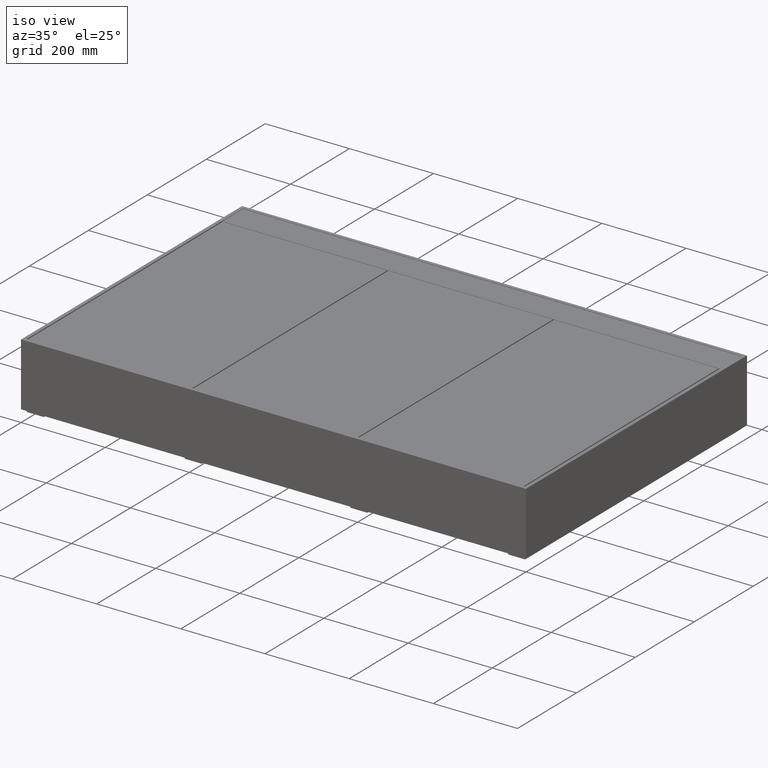
[diagram: clean part render]
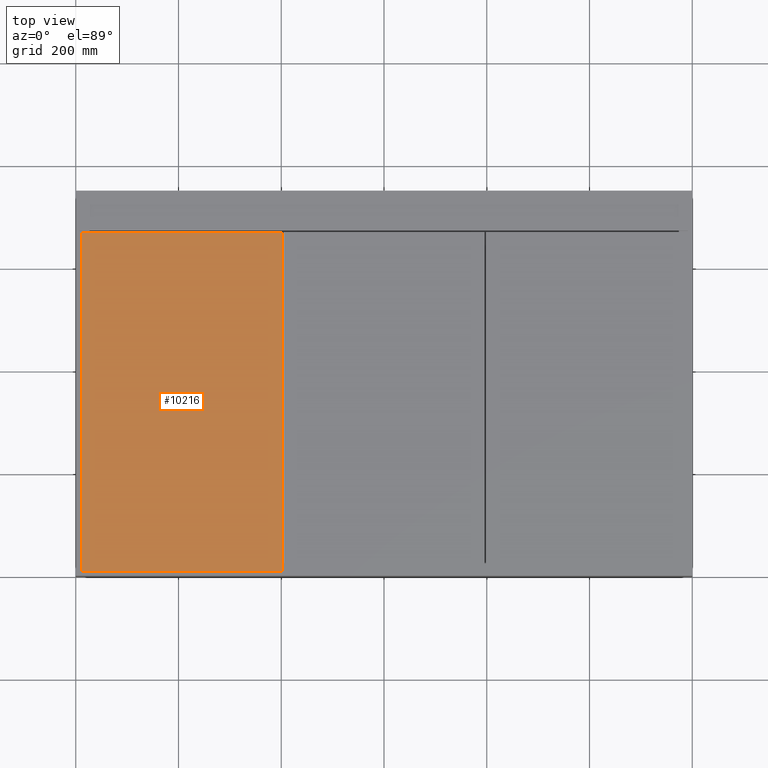
[diagram: tour spotlight — one face highlighted and labeled with its STEP entity id]
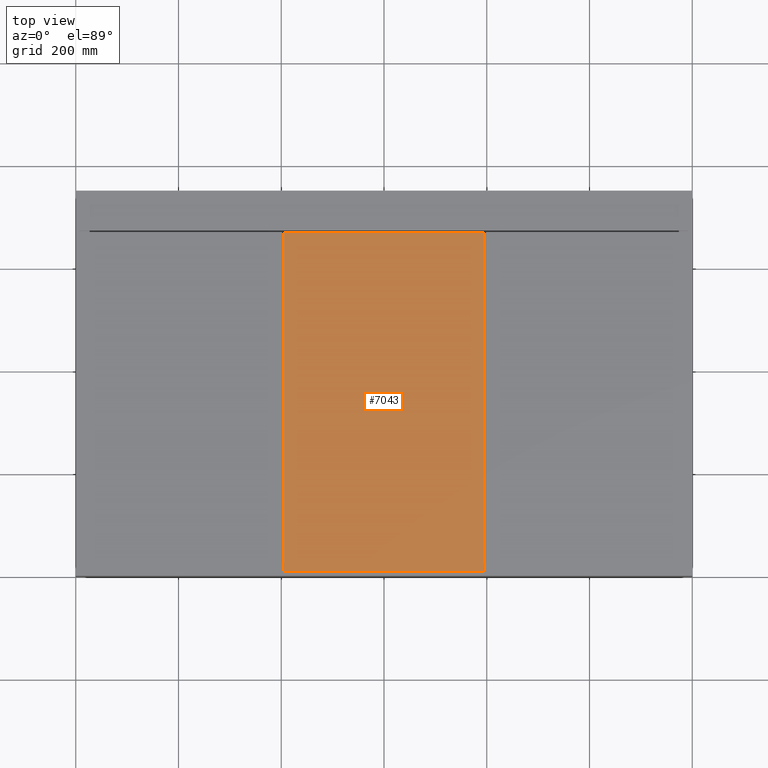
[diagram: tour spotlight — one face highlighted and labeled with its STEP entity id]
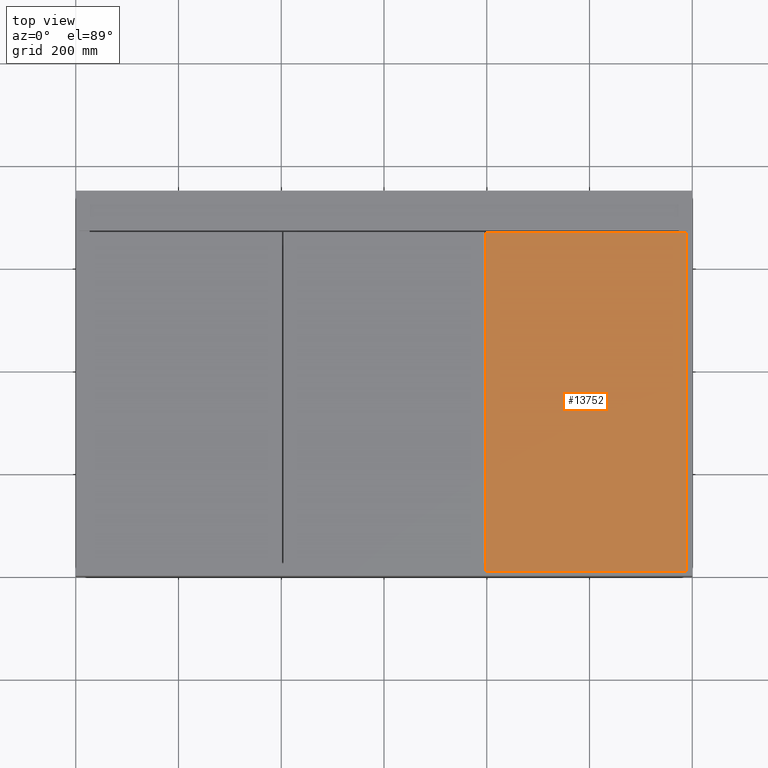
[diagram: tour spotlight — one face highlighted and labeled with its STEP entity id]
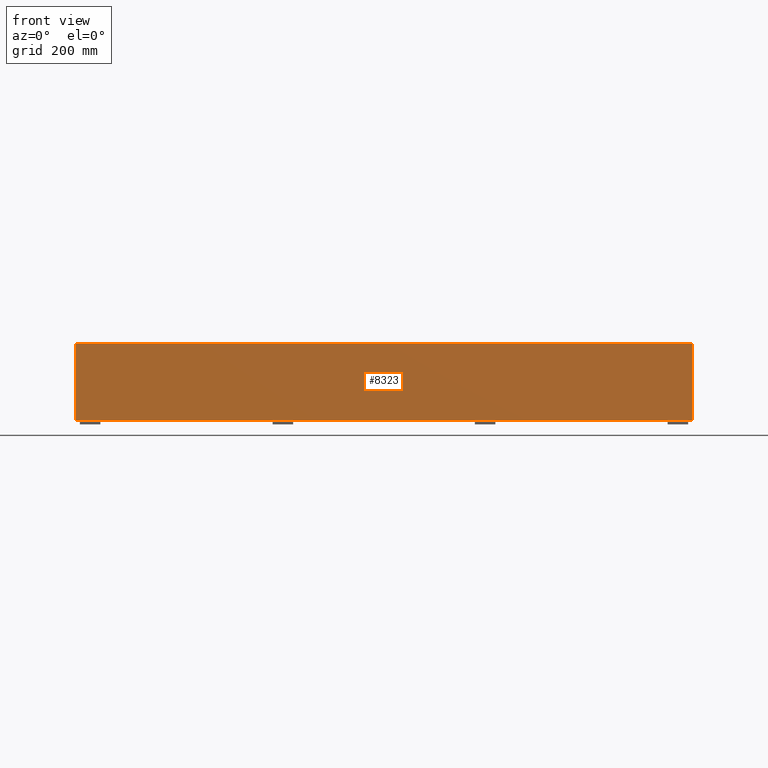
[diagram: tour spotlight — one face highlighted and labeled with its STEP entity id]
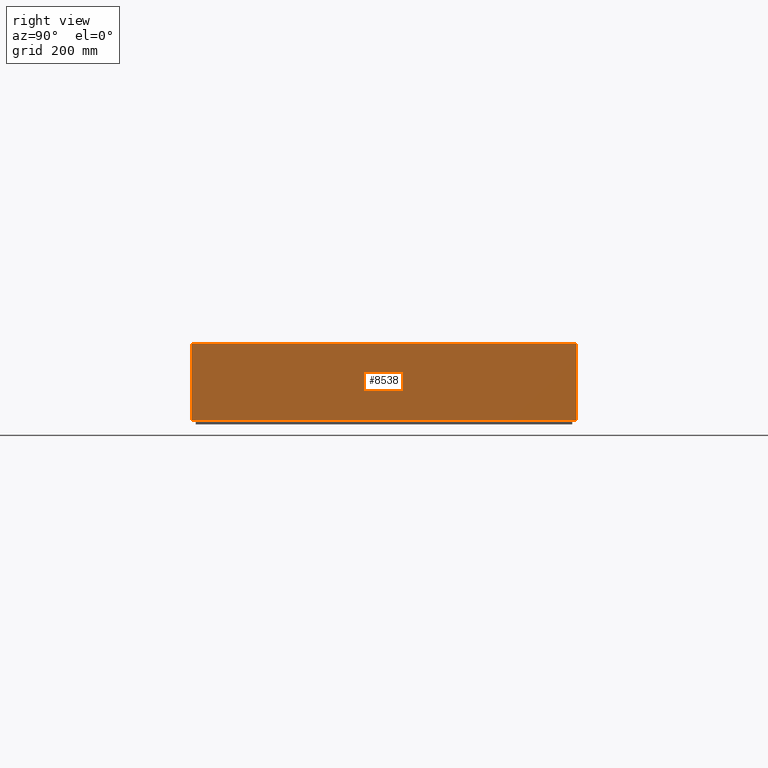
[diagram: tour spotlight — one face highlighted and labeled with its STEP entity id]
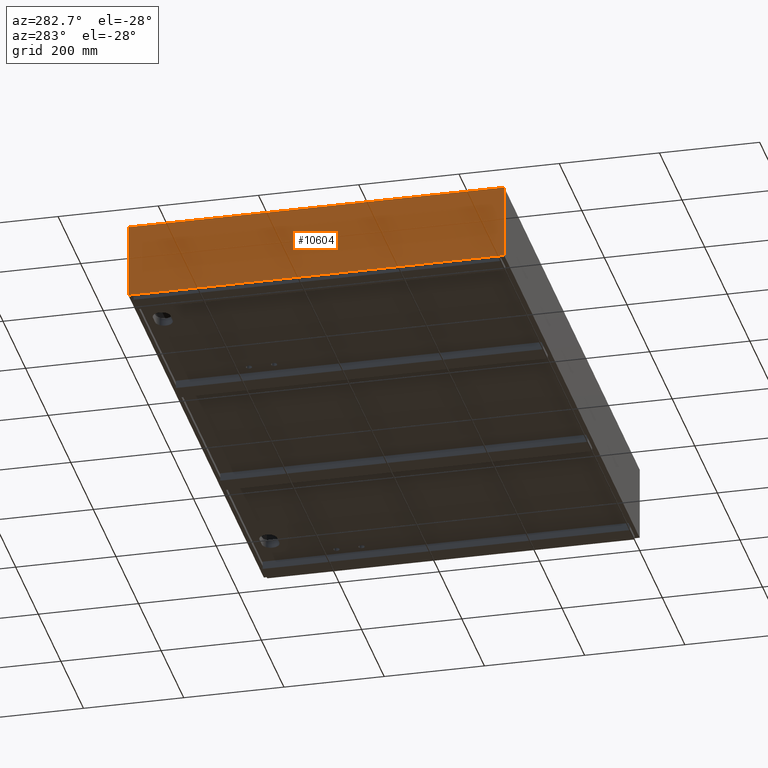
[diagram: tour spotlight — one face highlighted and labeled with its STEP entity id]
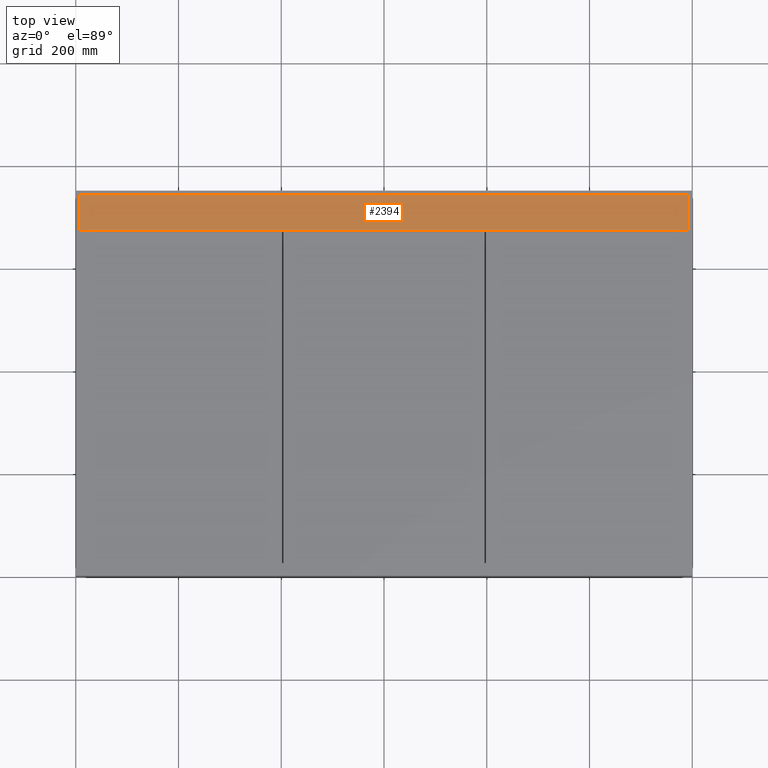
[diagram: tour spotlight — one face highlighted and labeled with its STEP entity id]
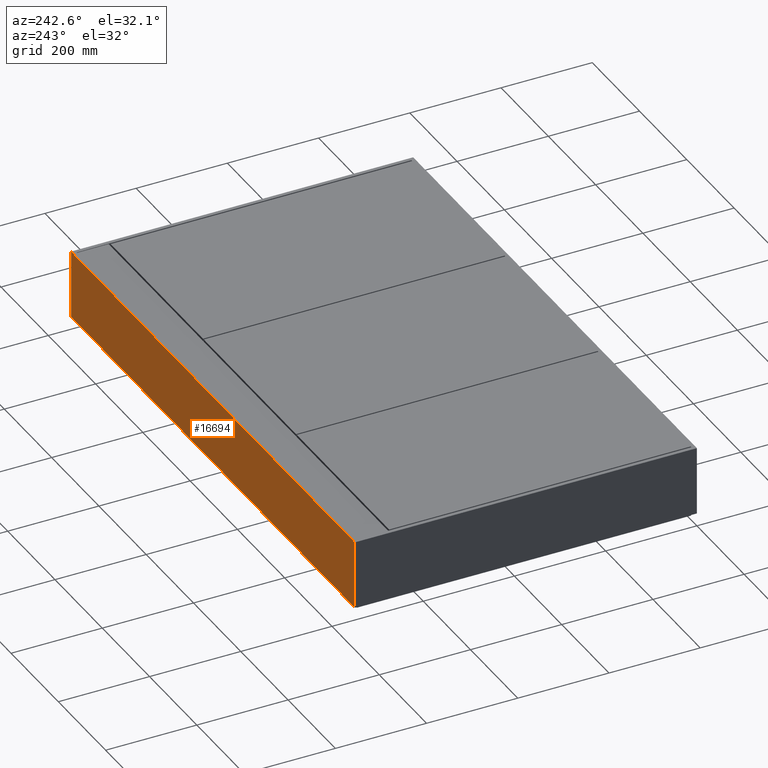
[diagram: tour spotlight — one face highlighted and labeled with its STEP entity id]
A machine part: a face-by-face anatomy tour. The part has 597 B-rep faces; the first image is the clean iso view, then the 8 largest visible faces are spotlighted one at a time (largest first), each with its STEP entity span.

Face 1 — top view, entity #10216. In plain terms, the highlighted planar face has unit normal (0, -0, 1).
Definition (entity closure, byte-faithful):
#1034 = VECTOR ( 'NONE', #10595, 1000.000000000000000 ) ;
#1240 = VECTOR ( 'NONE', #17620, 1000.000000000000000 ) ;
#1643 = LINE ( 'NONE', #7388, #12572 ) ;
#2298 = CARTESIAN_POINT ( 'NONE',  ( 0.0000000000000000000, 0.0000000000000000000, 6.071532165918824830E-14 ) ) ;
#2360 = EDGE_CURVE ( 'NONE', #11376, #8809, #6164, .T. ) ;
#3574 = AXIS2_PLACEMENT_3D ( 'NONE', #2298, #8047, #13774 ) ;
#4338 = EDGE_CURVE ( 'NONE', #16214, #10564, #6463, .T. ) ;
#4856 = CARTESIAN_POINT ( 'NONE',  ( 401.6600000000000250, 668.9999000000001388, 6.071532165918824830E-14 ) ) ;
#4929 = VECTOR ( 'NONE', #17913, 1000.000000000000000 ) ;
#6164 = LINE ( 'NONE', #11897, #1240 ) ;
#6463 = LINE ( 'NONE', #12184, #4929 ) ;
#7354 = EDGE_LOOP ( 'NONE', ( #8986, #8845, #18137, #15711 ) ) ;
#7388 = CARTESIAN_POINT ( 'NONE',  ( 11.00000000000001066, 668.9999000000001388, 6.071532165918824830E-14 ) ) ;
#7740 = CARTESIAN_POINT ( 'NONE',  ( 401.6600000000001387, 8.000000000000007105, 6.071532165918824830E-14 ) ) ;
#8047 = DIRECTION ( 'NONE',  ( 0.0000000000000000000, -0.0000000000000000000, 1.000000000000000000 ) ) ;
#8809 = VERTEX_POINT ( 'NONE', #17440 ) ;
#8845 = ORIENTED_EDGE ( 'NONE', *, *, #4338, .T. ) ;
#8986 = ORIENTED_EDGE ( 'NONE', *, *, #9243, .T. ) ;
#9243 = EDGE_CURVE ( 'NONE', #8809, #16214, #1643, .T. ) ;
#9444 = FACE_OUTER_BOUND ( 'NONE', #7354, .T. ) ;
#10216 = ADVANCED_FACE ( 'NONE', ( #9444 ), #15184, .T. ) ;
#10564 = VERTEX_POINT ( 'NONE', #7740 ) ;
#10595 = DIRECTION ( 'NONE',  ( -1.679611486514833642E-16, 1.000000000000000000, 1.925929944387235853E-34 ) ) ;
#11376 = VERTEX_POINT ( 'NONE', #17548 ) ;
#11558 = CARTESIAN_POINT ( 'NONE',  ( 11.00000000000012079, 8.000000000000007105, 6.071532165918824830E-14 ) ) ;
#11897 = CARTESIAN_POINT ( 'NONE',  ( 11.00000000000001066, 668.9999000000001388, 6.071532165918824830E-14 ) ) ;
#12184 = CARTESIAN_POINT ( 'NONE',  ( 11.00000000000012079, 8.000000000000007105, 6.071532165918824830E-14 ) ) ;
#12572 = VECTOR ( 'NONE', #13121, 1000.000000000000000 ) ;
#13121 = DIRECTION ( 'NONE',  ( 1.495903980177273990E-16, -1.000000000000000000, -1.925929944387235853E-34 ) ) ;
#13774 = DIRECTION ( 'NONE',  ( 1.000000000000000000, 9.479347801925019080E-38, 0.0000000000000000000 ) ) ;
#15184 = PLANE ( 'NONE',  #3574 ) ;
#15711 = ORIENTED_EDGE ( 'NONE', *, *, #2360, .T. ) ;
#16214 = VERTEX_POINT ( 'NONE', #11558 ) ;
#16741 = EDGE_CURVE ( 'NONE', #10564, #11376, #17728, .T. ) ;
#17440 = CARTESIAN_POINT ( 'NONE',  ( 11.00000000000001066, 668.9999000000001388, 6.071532165918824830E-14 ) ) ;
#17548 = CARTESIAN_POINT ( 'NONE',  ( 401.6600000000000250, 668.9999000000001388, 6.071532165918824830E-14 ) ) ;
#17620 = DIRECTION ( 'NONE',  ( -1.000000000000000000, -9.479347801925019080E-38, 0.0000000000000000000 ) ) ;
#17728 = LINE ( 'NONE', #4856, #1034 ) ;
#17913 = DIRECTION ( 'NONE',  ( 1.000000000000000000, 9.479347801925019080E-38, 0.0000000000000000000 ) ) ;
#18137 = ORIENTED_EDGE ( 'NONE', *, *, #16741, .T. ) ;

Face 2 — top view, entity #7043. In plain terms, the highlighted planar face has unit normal (0, -0, 1).
Definition (entity closure, byte-faithful):
#159 = DIRECTION ( 'NONE',  ( 1.000000000000000000, 4.438106427900597321E-52, 0.0000000000000000000 ) ) ;
#410 = CARTESIAN_POINT ( 'NONE',  ( 795.3400000000000318, 8.000000000000007105, 6.071532165918824830E-14 ) ) ;
#574 = VERTEX_POINT ( 'NONE', #12610 ) ;
#1080 = EDGE_CURVE ( 'NONE', #574, #9283, #7316, .T. ) ;
#1321 = PLANE ( 'NONE',  #10099 ) ;
#1907 = VECTOR ( 'NONE', #3200, 1000.000000000000000 ) ;
#2472 = VECTOR ( 'NONE', #159, 1000.000000000000000 ) ;
#3200 = DIRECTION ( 'NONE',  ( -1.679611486514833642E-16, 1.000000000000000000, 0.0000000000000000000 ) ) ;
#3688 = LINE ( 'NONE', #9438, #7357 ) ;
#4516 = DIRECTION ( 'NONE',  ( -1.000000000000000000, -4.438106427900597321E-52, 0.0000000000000000000 ) ) ;
#4735 = EDGE_LOOP ( 'NONE', ( #13971, #17234, #13876, #16928 ) ) ;
#4797 = EDGE_CURVE ( 'NONE', #15947, #574, #3688, .T. ) ;
#6681 = VECTOR ( 'NONE', #4516, 1000.000000000000000 ) ;
#7043 = ADVANCED_FACE ( 'NONE', ( #15615 ), #1321, .T. ) ;
#7079 = CARTESIAN_POINT ( 'NONE',  ( 0.0000000000000000000, 0.0000000000000000000, 6.071532165918824830E-14 ) ) ;
#7316 = LINE ( 'NONE', #13054, #2472 ) ;
#7357 = VECTOR ( 'NONE', #15179, 1000.000000000000000 ) ;
#9283 = VERTEX_POINT ( 'NONE', #410 ) ;
#9438 = CARTESIAN_POINT ( 'NONE',  ( 404.6599999999999113, 668.9999000000001388, 6.071532165918824830E-14 ) ) ;
#10099 = AXIS2_PLACEMENT_3D ( 'NONE', #7079, #12813, #18536 ) ;
#10352 = LINE ( 'NONE', #16079, #1907 ) ;
#11655 = LINE ( 'NONE', #17386, #6681 ) ;
#11894 = CARTESIAN_POINT ( 'NONE',  ( 404.6599999999999113, 668.9999000000001388, 6.071532165918824830E-14 ) ) ;
#12575 = EDGE_CURVE ( 'NONE', #12857, #15947, #11655, .T. ) ;
#12610 = CARTESIAN_POINT ( 'NONE',  ( 404.6600000000000250, 8.000000000000007105, 6.071532165918824830E-14 ) ) ;
#12676 = CARTESIAN_POINT ( 'NONE',  ( 795.3399999999999181, 668.9999000000001388, 6.071532165918824830E-14 ) ) ;
#12813 = DIRECTION ( 'NONE',  ( 0.0000000000000000000, -0.0000000000000000000, 1.000000000000000000 ) ) ;
#12857 = VERTEX_POINT ( 'NONE', #12676 ) ;
#13054 = CARTESIAN_POINT ( 'NONE',  ( 404.6600000000000250, 8.000000000000007105, 6.071532165918824830E-14 ) ) ;
#13829 = EDGE_CURVE ( 'NONE', #9283, #12857, #10352, .T. ) ;
#13876 = ORIENTED_EDGE ( 'NONE', *, *, #13829, .T. ) ;
#13971 = ORIENTED_EDGE ( 'NONE', *, *, #4797, .T. ) ;
#15179 = DIRECTION ( 'NONE',  ( 1.679611486514833642E-16, -1.000000000000000000, 0.0000000000000000000 ) ) ;
#15615 = FACE_OUTER_BOUND ( 'NONE', #4735, .T. ) ;
#15947 = VERTEX_POINT ( 'NONE', #11894 ) ;
#16079 = CARTESIAN_POINT ( 'NONE',  ( 795.3399999999999181, 668.9999000000001388, 6.071532165918824830E-14 ) ) ;
#16928 = ORIENTED_EDGE ( 'NONE', *, *, #12575, .T. ) ;
#17234 = ORIENTED_EDGE ( 'NONE', *, *, #1080, .T. ) ;
#17386 = CARTESIAN_POINT ( 'NONE',  ( 404.6599999999999113, 668.9999000000001388, 6.071532165918824830E-14 ) ) ;
#18536 = DIRECTION ( 'NONE',  ( 1.000000000000000000, 4.438106427900597321E-52, 0.0000000000000000000 ) ) ;

Face 3 — top view, entity #13752. In plain terms, the highlighted planar face has unit normal (0, 0, 1).
Definition (entity closure, byte-faithful):
#94 = FACE_OUTER_BOUND ( 'NONE', #1942, .T. ) ;
#396 = AXIS2_PLACEMENT_3D ( 'NONE', #11566, #17301, #4430 ) ;
#1054 = EDGE_CURVE ( 'NONE', #12862, #4234, #8636, .T. ) ;
#1470 = DIRECTION ( 'NONE',  ( -1.976343993986721718E-36, 1.000000000000000000, 0.0000000000000000000 ) ) ;
#1942 = EDGE_LOOP ( 'NONE', ( #7972, #4074, #7615, #9534 ) ) ;
#2884 = DIRECTION ( 'NONE',  ( 1.000000000000000000, -1.976343993986721718E-36, 0.0000000000000000000 ) ) ;
#3585 = LINE ( 'NONE', #9335, #13011 ) ;
#3622 = DIRECTION ( 'NONE',  ( 1.679611486514833642E-16, -1.000000000000000000, 0.0000000000000000000 ) ) ;
#4074 = ORIENTED_EDGE ( 'NONE', *, *, #12932, .T. ) ;
#4234 = VERTEX_POINT ( 'NONE', #7588 ) ;
#4430 = DIRECTION ( 'NONE',  ( 1.000000000000000000, -1.976343993986721718E-36, 0.0000000000000000000 ) ) ;
#4638 = CARTESIAN_POINT ( 'NONE',  ( 798.3399999999998045, 668.9999000000001388, 6.071532165918824830E-14 ) ) ;
#4891 = VERTEX_POINT ( 'NONE', #9710 ) ;
#5834 = PLANE ( 'NONE',  #396 ) ;
#6567 = VECTOR ( 'NONE', #3622, 1000.000000000000000 ) ;
#7588 = CARTESIAN_POINT ( 'NONE',  ( 1189.000000000000000, 668.9999000000001388, 6.071532165918824830E-14 ) ) ;
#7591 = VECTOR ( 'NONE', #2884, 1000.000000000000000 ) ;
#7615 = ORIENTED_EDGE ( 'NONE', *, *, #1054, .T. ) ;
#7972 = ORIENTED_EDGE ( 'NONE', *, *, #8957, .T. ) ;
#8636 = LINE ( 'NONE', #14364, #9684 ) ;
#8957 = EDGE_CURVE ( 'NONE', #17494, #4891, #10777, .T. ) ;
#9335 = CARTESIAN_POINT ( 'NONE',  ( 798.3399999999998045, 668.9999000000001388, 6.071532165918824830E-14 ) ) ;
#9534 = ORIENTED_EDGE ( 'NONE', *, *, #13520, .T. ) ;
#9684 = VECTOR ( 'NONE', #1470, 1000.000000000000000 ) ;
#9710 = CARTESIAN_POINT ( 'NONE',  ( 798.3399999999999181, 8.000000000000007105, 6.071532165918824830E-14 ) ) ;
#10044 = LINE ( 'NONE', #15772, #7591 ) ;
#10777 = LINE ( 'NONE', #16510, #6567 ) ;
#11566 = CARTESIAN_POINT ( 'NONE',  ( 0.0000000000000000000, 0.0000000000000000000, 6.071532165918824830E-14 ) ) ;
#12862 = VERTEX_POINT ( 'NONE', #16986 ) ;
#12932 = EDGE_CURVE ( 'NONE', #4891, #12862, #10044, .T. ) ;
#13011 = VECTOR ( 'NONE', #15070, 1000.000000000000000 ) ;
#13520 = EDGE_CURVE ( 'NONE', #4234, #17494, #3585, .T. ) ;
#13752 = ADVANCED_FACE ( 'NONE', ( #94 ), #5834, .T. ) ;
#14364 = CARTESIAN_POINT ( 'NONE',  ( 1189.000000000000000, 668.9999000000001388, 6.071532165918824830E-14 ) ) ;
#15070 = DIRECTION ( 'NONE',  ( -1.000000000000000000, 1.976343993986721718E-36, 0.0000000000000000000 ) ) ;
#15772 = CARTESIAN_POINT ( 'NONE',  ( 798.3399999999999181, 8.000000000000007105, 6.071532165918824830E-14 ) ) ;
#16510 = CARTESIAN_POINT ( 'NONE',  ( 798.3399999999998045, 668.9999000000001388, 6.071532165918824830E-14 ) ) ;
#16986 = CARTESIAN_POINT ( 'NONE',  ( 1189.000000000000000, 8.000000000000007105, 6.071532165918824830E-14 ) ) ;
#17301 = DIRECTION ( 'NONE',  ( 0.0000000000000000000, 0.0000000000000000000, 1.000000000000000000 ) ) ;
#17494 = VERTEX_POINT ( 'NONE', #4638 ) ;

Face 4 — front view, entity #8323. In plain terms, the highlighted planar face has unit normal (-0, 1, 0).
Definition (entity closure, byte-faithful):
#629 = EDGE_CURVE ( 'NONE', #16457, #2891, #9963, .T. ) ;
#1158 = LINE ( 'NONE', #6914, #17649 ) ;
#1487 = DIRECTION ( 'NONE',  ( -6.162975822039154730E-33, 1.000000000000000000, 6.973307563292352205E-66 ) ) ;
#1678 = EDGE_LOOP ( 'NONE', ( #8973, #6833, #3183, #17226 ) ) ;
#1827 = CARTESIAN_POINT ( 'NONE',  ( 0.0000000000000000000, 0.0000000000000000000, -150.0000000000000000 ) ) ;
#2808 = DIRECTION ( 'NONE',  ( 1.000000000000000000, -6.162975822039154730E-33, 1.131483842327501064E-33 ) ) ;
#2891 = VERTEX_POINT ( 'NONE', #9424 ) ;
#2897 = FACE_OUTER_BOUND ( 'NONE', #1678, .T. ) ;
#3183 = ORIENTED_EDGE ( 'NONE', *, *, #11799, .F. ) ;
#4434 = AXIS2_PLACEMENT_3D ( 'NONE', #14378, #1487, #7234 ) ;
#4661 = EDGE_CURVE ( 'NONE', #12354, #18396, #14721, .T. ) ;
#4893 = VECTOR ( 'NONE', #2808, 1000.000000000000000 ) ;
#5631 = LINE ( 'NONE', #11368, #12940 ) ;
#6833 = ORIENTED_EDGE ( 'NONE', *, *, #4661, .F. ) ;
#6914 = CARTESIAN_POINT ( 'NONE',  ( 0.0000000000000000000, 0.0000000000000000000, -150.0000000000000000 ) ) ;
#7234 = DIRECTION ( 'NONE',  ( 1.131483842327501064E-33, 0.0000000000000000000, 1.000000000000000000 ) ) ;
#7572 = DIRECTION ( 'NONE',  ( -1.000000000000000000, 6.162975822039154730E-33, -1.131483842327501064E-33 ) ) ;
#8323 = ADVANCED_FACE ( 'NONE', ( #2897 ), #8651, .F. ) ;
#8651 = PLANE ( 'NONE',  #4434 ) ;
#8973 = ORIENTED_EDGE ( 'NONE', *, *, #9074, .F. ) ;
#9074 = EDGE_CURVE ( 'NONE', #18396, #16457, #1158, .T. ) ;
#9424 = CARTESIAN_POINT ( 'NONE',  ( 1200.000000000000000, 0.0000000000000000000, 1.387778780781445676E-14 ) ) ;
#9963 = LINE ( 'NONE', #15692, #4893 ) ;
#11215 = CARTESIAN_POINT ( 'NONE',  ( 0.0000000000000000000, 0.0000000000000000000, -150.0000000000000000 ) ) ;
#11368 = CARTESIAN_POINT ( 'NONE',  ( 1200.000000000000000, 4.336808689942017736E-16, -149.9999999999999716 ) ) ;
#11799 = EDGE_CURVE ( 'NONE', #2891, #12354, #5631, .T. ) ;
#12354 = VERTEX_POINT ( 'NONE', #16001 ) ;
#12650 = DIRECTION ( 'NONE',  ( 1.131483842327501064E-33, 0.0000000000000000000, 1.000000000000000000 ) ) ;
#12940 = VECTOR ( 'NONE', #17095, 1000.000000000000000 ) ;
#13815 = CARTESIAN_POINT ( 'NONE',  ( 0.0000000000000000000, 0.0000000000000000000, 0.0000000000000000000 ) ) ;
#14378 = CARTESIAN_POINT ( 'NONE',  ( 0.0000000000000000000, 0.0000000000000000000, 0.0000000000000000000 ) ) ;
#14721 = LINE ( 'NONE', #1827, #14853 ) ;
#14853 = VECTOR ( 'NONE', #7572, 1000.000000000000000 ) ;
#15692 = CARTESIAN_POINT ( 'NONE',  ( 0.0000000000000000000, 0.0000000000000000000, 0.0000000000000000000 ) ) ;
#16001 = CARTESIAN_POINT ( 'NONE',  ( 1200.000000000000000, 4.336808689942017736E-16, -149.9999999999999716 ) ) ;
#16457 = VERTEX_POINT ( 'NONE', #13815 ) ;
#17095 = DIRECTION ( 'NONE',  ( -1.131483842327501064E-33, 0.0000000000000000000, -1.000000000000000000 ) ) ;
#17226 = ORIENTED_EDGE ( 'NONE', *, *, #629, .F. ) ;
#17649 = VECTOR ( 'NONE', #12650, 1000.000000000000000 ) ;
#18396 = VERTEX_POINT ( 'NONE', #11215 ) ;

Face 5 — right view, entity #8538. In plain terms, the highlighted planar face has unit normal (-1, 0, 0).
Definition (entity closure, byte-faithful):
#101 = DIRECTION ( 'NONE',  ( 0.0000000000000000000, 4.160309606430239948E-33, -1.000000000000000000 ) ) ;
#226 = LINE ( 'NONE', #5968, #15738 ) ;
#590 = CARTESIAN_POINT ( 'NONE',  ( 1200.000000000000000, 750.0000000000000000, -150.0000000000000568 ) ) ;
#1282 = ORIENTED_EDGE ( 'NONE', *, *, #5788, .F. ) ;
#1699 = VECTOR ( 'NONE', #101, 1000.000000000000000 ) ;
#2247 = CARTESIAN_POINT ( 'NONE',  ( 1200.000000000000000, 900.2131818450031915, 1.387778780781445676E-14 ) ) ;
#2605 = CARTESIAN_POINT ( 'NONE',  ( 1200.000000000000000, 750.0000000000000000, 1.387778780781445676E-14 ) ) ;
#3826 = VERTEX_POINT ( 'NONE', #18451 ) ;
#3924 = DIRECTION ( 'NONE',  ( 1.925929944387235853E-34, -1.000000000000000000, 4.160309606430239948E-33 ) ) ;
#4580 = CARTESIAN_POINT ( 'NONE',  ( 1200.000000000000000, 750.0000000000000000, 1.387778780781445676E-14 ) ) ;
#4623 = EDGE_CURVE ( 'NONE', #8128, #3826, #226, .T. ) ;
#5788 = EDGE_CURVE ( 'NONE', #15455, #8128, #15489, .T. ) ;
#5968 = CARTESIAN_POINT ( 'NONE',  ( 1200.000000000000000, 900.2131818450031915, -150.0000000000000568 ) ) ;
#6119 = EDGE_CURVE ( 'NONE', #8429, #3826, #7256, .T. ) ;
#6427 = VECTOR ( 'NONE', #3924, 1000.000000000000000 ) ;
#7256 = LINE ( 'NONE', #12991, #1699 ) ;
#7992 = DIRECTION ( 'NONE',  ( -1.000000000000000000, 1.925929944387235853E-34, 8.012464848945875103E-67 ) ) ;
#8128 = VERTEX_POINT ( 'NONE', #590 ) ;
#8354 = DIRECTION ( 'NONE',  ( 0.0000000000000000000, 4.160309606430239948E-33, -1.000000000000000000 ) ) ;
#8429 = VERTEX_POINT ( 'NONE', #17654 ) ;
#8538 = ADVANCED_FACE ( 'NONE', ( #9393 ), #15132, .F. ) ;
#9393 = FACE_OUTER_BOUND ( 'NONE', #15479, .T. ) ;
#11082 = LINE ( 'NONE', #16806, #6427 ) ;
#11378 = ORIENTED_EDGE ( 'NONE', *, *, #14052, .T. ) ;
#11692 = DIRECTION ( 'NONE',  ( 1.925929944387235853E-34, -1.000000000000000000, 4.160309606430239948E-33 ) ) ;
#12991 = CARTESIAN_POINT ( 'NONE',  ( 1200.000000000000000, 0.0000000000000000000, 1.387778780781445676E-14 ) ) ;
#13723 = DIRECTION ( 'NONE',  ( 0.0000000000000000000, -4.160309606430239948E-33, 1.000000000000000000 ) ) ;
#13756 = AXIS2_PLACEMENT_3D ( 'NONE', #2247, #7992, #13723 ) ;
#14052 = EDGE_CURVE ( 'NONE', #15455, #8429, #11082, .T. ) ;
#15132 = PLANE ( 'NONE',  #13756 ) ;
#15194 = VECTOR ( 'NONE', #8354, 1000.000000000000000 ) ;
#15455 = VERTEX_POINT ( 'NONE', #4580 ) ;
#15479 = EDGE_LOOP ( 'NONE', ( #1282, #11378, #16194, #18200 ) ) ;
#15489 = LINE ( 'NONE', #2605, #15194 ) ;
#15738 = VECTOR ( 'NONE', #11692, 1000.000000000000000 ) ;
#16194 = ORIENTED_EDGE ( 'NONE', *, *, #6119, .T. ) ;
#16806 = CARTESIAN_POINT ( 'NONE',  ( 1200.000000000000000, 900.2131818450031915, 1.387778780781445676E-14 ) ) ;
#17654 = CARTESIAN_POINT ( 'NONE',  ( 1200.000000000000000, 0.0000000000000000000, 1.387778780781445676E-14 ) ) ;
#18200 = ORIENTED_EDGE ( 'NONE', *, *, #4623, .F. ) ;
#18451 = CARTESIAN_POINT ( 'NONE',  ( 1200.000000000000000, 0.0000000000000000000, -150.0000000000000568 ) ) ;

Face 6 — auxiliary view, entity #10604. In plain terms, the highlighted planar face has unit normal (1, 0, -0).
Definition (entity closure, byte-faithful):
#868 = EDGE_CURVE ( 'NONE', #17307, #4967, #3557, .T. ) ;
#1388 = VERTEX_POINT ( 'NONE', #7179 ) ;
#2089 = DIRECTION ( 'NONE',  ( 1.000000000000000000, 2.407412430484044816E-35, -2.571812858386786312E-69 ) ) ;
#2337 = LINE ( 'NONE', #8081, #18541 ) ;
#3488 = FACE_OUTER_BOUND ( 'NONE', #15975, .T. ) ;
#3557 = LINE ( 'NONE', #9314, #17485 ) ;
#3850 = LINE ( 'NONE', #9593, #11905 ) ;
#4776 = VECTOR ( 'NONE', #17161, 1000.000000000000000 ) ;
#4967 = VERTEX_POINT ( 'NONE', #17022 ) ;
#5698 = LINE ( 'NONE', #11429, #4776 ) ;
#7179 = CARTESIAN_POINT ( 'NONE',  ( -4.336808689942017736E-16, 0.0000000000000000000, -150.0000000000000000 ) ) ;
#7391 = EDGE_CURVE ( 'NONE', #17307, #1388, #3850, .T. ) ;
#7827 = DIRECTION ( 'NONE',  ( 0.0000000000000000000, -1.068289266027294887E-34, -1.000000000000000000 ) ) ;
#8081 = CARTESIAN_POINT ( 'NONE',  ( -4.336808689942017736E-16, 900.2131818450031915, 0.0000000000000000000 ) ) ;
#8425 = CARTESIAN_POINT ( 'NONE',  ( -4.336808689942017736E-16, 0.0000000000000000000, 0.0000000000000000000 ) ) ;
#8557 = EDGE_CURVE ( 'NONE', #4967, #18129, #2337, .T. ) ;
#8891 = ORIENTED_EDGE ( 'NONE', *, *, #8557, .F. ) ;
#9248 = PLANE ( 'NONE',  #18289 ) ;
#9314 = CARTESIAN_POINT ( 'NONE',  ( -4.336808689942017736E-16, 750.0000000000000000, -150.0000000000000000 ) ) ;
#9593 = CARTESIAN_POINT ( 'NONE',  ( -4.336808689942017736E-16, 900.2131818450031915, -150.0000000000000000 ) ) ;
#10009 = EDGE_CURVE ( 'NONE', #1388, #18129, #5698, .T. ) ;
#10604 = ADVANCED_FACE ( 'NONE', ( #3488 ), #9248, .F. ) ;
#11119 = CARTESIAN_POINT ( 'NONE',  ( -4.336808689942017736E-16, 750.0000000000000000, -150.0000000000000000 ) ) ;
#11232 = ORIENTED_EDGE ( 'NONE', *, *, #10009, .T. ) ;
#11429 = CARTESIAN_POINT ( 'NONE',  ( -4.336808689942017736E-16, 0.0000000000000000000, -150.0000000000000000 ) ) ;
#11905 = VECTOR ( 'NONE', #15327, 1000.000000000000000 ) ;
#12780 = ORIENTED_EDGE ( 'NONE', *, *, #868, .F. ) ;
#13808 = DIRECTION ( 'NONE',  ( -2.407412430484044816E-35, -1.000000000000000000, -1.068289266027294887E-34 ) ) ;
#14979 = CARTESIAN_POINT ( 'NONE',  ( -4.336808689942017736E-16, 900.2131818450031915, -150.0000000000000000 ) ) ;
#15047 = DIRECTION ( 'NONE',  ( 0.0000000000000000000, 1.068289266027294887E-34, 1.000000000000000000 ) ) ;
#15327 = DIRECTION ( 'NONE',  ( -2.407412430484044816E-35, -1.000000000000000000, -1.068289266027294887E-34 ) ) ;
#15715 = ORIENTED_EDGE ( 'NONE', *, *, #7391, .T. ) ;
#15975 = EDGE_LOOP ( 'NONE', ( #12780, #15715, #11232, #8891 ) ) ;
#17022 = CARTESIAN_POINT ( 'NONE',  ( -4.336808689942017736E-16, 750.0000000000000000, 0.0000000000000000000 ) ) ;
#17161 = DIRECTION ( 'NONE',  ( 0.0000000000000000000, 1.068289266027294887E-34, 1.000000000000000000 ) ) ;
#17307 = VERTEX_POINT ( 'NONE', #11119 ) ;
#17485 = VECTOR ( 'NONE', #15047, 1000.000000000000000 ) ;
#18129 = VERTEX_POINT ( 'NONE', #8425 ) ;
#18289 = AXIS2_PLACEMENT_3D ( 'NONE', #14979, #2089, #7827 ) ;
#18541 = VECTOR ( 'NONE', #13808, 1000.000000000000000 ) ;

Face 7 — top view, entity #2394. In plain terms, the highlighted planar face has unit normal (-0, 0, -1).
Definition (entity closure, byte-faithful):
#2394 = ADVANCED_FACE ( 'NONE', ( #10570 ), #16304, .F. ) ;
#3100 = LINE ( 'NONE', #8854, #14499 ) ;
#3158 = EDGE_CURVE ( 'NONE', #8463, #7026, #3100, .T. ) ;
#3422 = CARTESIAN_POINT ( 'NONE',  ( 1271.649318892316842, 742.0000000000000000, -1.000000000000032196 ) ) ;
#3452 = VERTEX_POINT ( 'NONE', #12851 ) ;
#4130 = LINE ( 'NONE', #9881, #14159 ) ;
#4456 = DIRECTION ( 'NONE',  ( -1.000000000000000000, 5.777789833161705849E-34, 1.153591111524576471E-16 ) ) ;
#4473 = CARTESIAN_POINT ( 'NONE',  ( 1192.000000000000000, 742.0000000000000000, -1.000000000000021760 ) ) ;
#5529 = ORIENTED_EDGE ( 'NONE', *, *, #17030, .F. ) ;
#7026 = VERTEX_POINT ( 'NONE', #17018 ) ;
#8029 = EDGE_LOOP ( 'NONE', ( #5529, #15019, #10160, #14827 ) ) ;
#8463 = VERTEX_POINT ( 'NONE', #14952 ) ;
#8470 = AXIS2_PLACEMENT_3D ( 'NONE', #3422, #9180, #14916 ) ;
#8569 = VECTOR ( 'NONE', #10210, 1000.000000000000000 ) ;
#8854 = CARTESIAN_POINT ( 'NONE',  ( 1271.649318892316842, 671.9999000000001388, -1.000000000000039080 ) ) ;
#9180 = DIRECTION ( 'NONE',  ( -1.153591111524576471E-16, 1.239086427002825381E-16, -1.000000000000000000 ) ) ;
#9881 = CARTESIAN_POINT ( 'NONE',  ( 8.000000000000007105, 742.0000000000000000, -0.9999999999998864242 ) ) ;
#10160 = ORIENTED_EDGE ( 'NONE', *, *, #12495, .T. ) ;
#10210 = DIRECTION ( 'NONE',  ( 0.0000000000000000000, -1.000000000000000000, -1.239086427002825381E-16 ) ) ;
#10570 = FACE_OUTER_BOUND ( 'NONE', #8029, .T. ) ;
#11102 = VERTEX_POINT ( 'NONE', #18123 ) ;
#11592 = LINE ( 'NONE', #17327, #12819 ) ;
#12495 = EDGE_CURVE ( 'NONE', #3452, #7026, #4130, .T. ) ;
#12819 = VECTOR ( 'NONE', #4456, 1000.000000000000000 ) ;
#12851 = CARTESIAN_POINT ( 'NONE',  ( 8.000000000000007105, 742.0000000000000000, -0.9999999999998864242 ) ) ;
#14159 = VECTOR ( 'NONE', #15605, 1000.000000000000000 ) ;
#14499 = VECTOR ( 'NONE', #14595, 1000.000000000000000 ) ;
#14595 = DIRECTION ( 'NONE',  ( -1.000000000000000000, 5.777789833161705849E-34, 1.153591111524576471E-16 ) ) ;
#14827 = ORIENTED_EDGE ( 'NONE', *, *, #3158, .F. ) ;
#14916 = DIRECTION ( 'NONE',  ( 0.0000000000000000000, 1.000000000000000000, 1.239086427002825381E-16 ) ) ;
#14952 = CARTESIAN_POINT ( 'NONE',  ( 1192.000000000000000, 671.9999000000001388, -1.000000000000032196 ) ) ;
#15019 = ORIENTED_EDGE ( 'NONE', *, *, #18436, .T. ) ;
#15605 = DIRECTION ( 'NONE',  ( 0.0000000000000000000, -1.000000000000000000, -1.239086427002825381E-16 ) ) ;
#16304 = PLANE ( 'NONE',  #8470 ) ;
#17018 = CARTESIAN_POINT ( 'NONE',  ( 8.000000000000007105, 671.9999000000001388, -0.9999999999998933076 ) ) ;
#17030 = EDGE_CURVE ( 'NONE', #11102, #8463, #17343, .T. ) ;
#17327 = CARTESIAN_POINT ( 'NONE',  ( 1271.649318892316842, 742.0000000000000000, -1.000000000000032196 ) ) ;
#17343 = LINE ( 'NONE', #4473, #8569 ) ;
#18123 = CARTESIAN_POINT ( 'NONE',  ( 1192.000000000000000, 742.0000000000000000, -1.000000000000021760 ) ) ;
#18436 = EDGE_CURVE ( 'NONE', #11102, #3452, #11592, .T. ) ;

Face 8 — auxiliary view, entity #16694. In plain terms, the highlighted planar face has unit normal (-0, 1, -0).
Definition (entity closure, byte-faithful):
#1178 = DIRECTION ( 'NONE',  ( 6.516564522766497444E-33, 0.0000000000000000000, -1.000000000000000000 ) ) ;
#1768 = CARTESIAN_POINT ( 'NONE',  ( 0.0000000000000000000, 749.9999000000000251, 1.387778780781445676E-14 ) ) ;
#2141 = CARTESIAN_POINT ( 'NONE',  ( 0.0000000000000000000, 749.9999000000000251, 1.387778780781445676E-14 ) ) ;
#2592 = DIRECTION ( 'NONE',  ( -6.516564522766497444E-33, 0.0000000000000000000, 1.000000000000000000 ) ) ;
#3225 = VERTEX_POINT ( 'NONE', #2141 ) ;
#3554 = LINE ( 'NONE', #9310, #16479 ) ;
#3651 = EDGE_LOOP ( 'NONE', ( #8604, #13396, #5202, #5025 ) ) ;
#4342 = AXIS2_PLACEMENT_3D ( 'NONE', #1768, #7507, #13239 ) ;
#4848 = LINE ( 'NONE', #10587, #7460 ) ;
#5025 = ORIENTED_EDGE ( 'NONE', *, *, #8910, .T. ) ;
#5202 = ORIENTED_EDGE ( 'NONE', *, *, #9926, .T. ) ;
#6565 = VERTEX_POINT ( 'NONE', #14133 ) ;
#6758 = VERTEX_POINT ( 'NONE', #13298 ) ;
#7460 = VECTOR ( 'NONE', #16320, 1000.000000000000000 ) ;
#7507 = DIRECTION ( 'NONE',  ( -1.925929944387235425E-34, 1.000000000000000000, -1.255044674892751193E-66 ) ) ;
#8353 = LINE ( 'NONE', #14076, #11365 ) ;
#8604 = ORIENTED_EDGE ( 'NONE', *, *, #13275, .T. ) ;
#8910 = EDGE_CURVE ( 'NONE', #6565, #6758, #4848, .T. ) ;
#8924 = FACE_OUTER_BOUND ( 'NONE', #3651, .T. ) ;
#9310 = CARTESIAN_POINT ( 'NONE',  ( 0.0000000000000000000, 749.9999000000000251, 1.387778780781445676E-14 ) ) ;
#9574 = VERTEX_POINT ( 'NONE', #15686 ) ;
#9746 = LINE ( 'NONE', #15475, #17486 ) ;
#9779 = EDGE_CURVE ( 'NONE', #3225, #9574, #3554, .T. ) ;
#9926 = EDGE_CURVE ( 'NONE', #9574, #6565, #8353, .T. ) ;
#10587 = CARTESIAN_POINT ( 'NONE',  ( 0.0000000000000000000, 749.9999000000000251, -150.0000000000000284 ) ) ;
#11365 = VECTOR ( 'NONE', #1178, 1000.000000000000000 ) ;
#13239 = DIRECTION ( 'NONE',  ( -6.516564522766497444E-33, 0.0000000000000000000, 1.000000000000000000 ) ) ;
#13275 = EDGE_CURVE ( 'NONE', #6758, #3225, #9746, .T. ) ;
#13298 = CARTESIAN_POINT ( 'NONE',  ( 0.0000000000000000000, 749.9999000000000251, -150.0000000000000284 ) ) ;
#13396 = ORIENTED_EDGE ( 'NONE', *, *, #9779, .T. ) ;
#14076 = CARTESIAN_POINT ( 'NONE',  ( 1200.000000000000000, 749.9999000000000251, -150.0000000000000284 ) ) ;
#14133 = CARTESIAN_POINT ( 'NONE',  ( 1200.000000000000000, 749.9999000000000251, -150.0000000000000284 ) ) ;
#14665 = PLANE ( 'NONE',  #4342 ) ;
#15044 = DIRECTION ( 'NONE',  ( 1.000000000000000000, -1.925929944387235853E-34, -6.516564522766498812E-33 ) ) ;
#15475 = CARTESIAN_POINT ( 'NONE',  ( 0.0000000000000000000, 749.9999000000000251, -150.0000000000000284 ) ) ;
#15686 = CARTESIAN_POINT ( 'NONE',  ( 1200.000000000000000, 749.9999000000000251, 1.387778780781445676E-14 ) ) ;
#16320 = DIRECTION ( 'NONE',  ( -1.000000000000000000, 1.925929944387235853E-34, 6.516564522766498812E-33 ) ) ;
#16479 = VECTOR ( 'NONE', #15044, 1000.000000000000000 ) ;
#16694 = ADVANCED_FACE ( 'NONE', ( #8924 ), #14665, .T. ) ;
#17486 = VECTOR ( 'NONE', #2592, 1000.000000000000000 ) ;